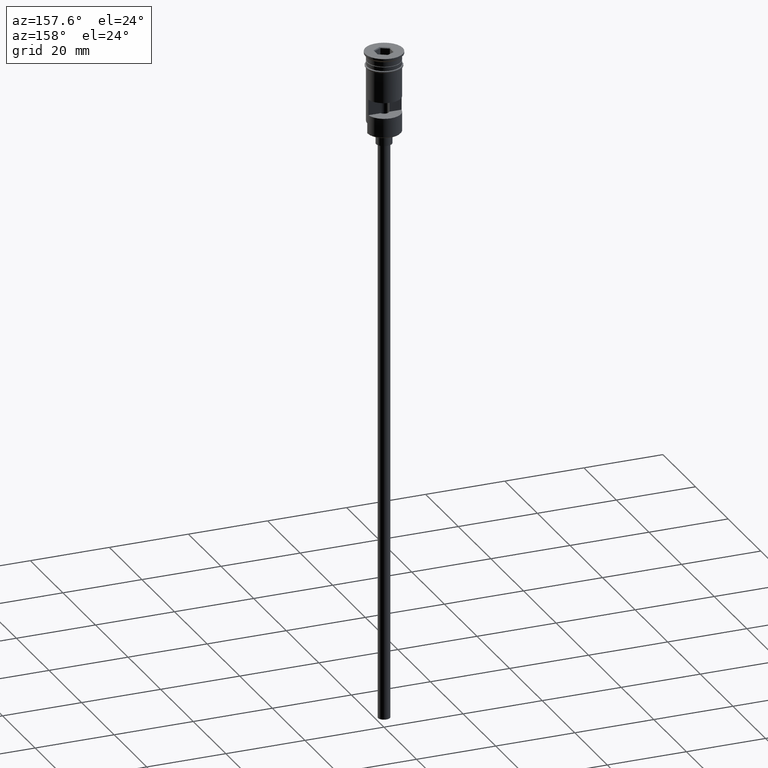
[diagram: clean part render]
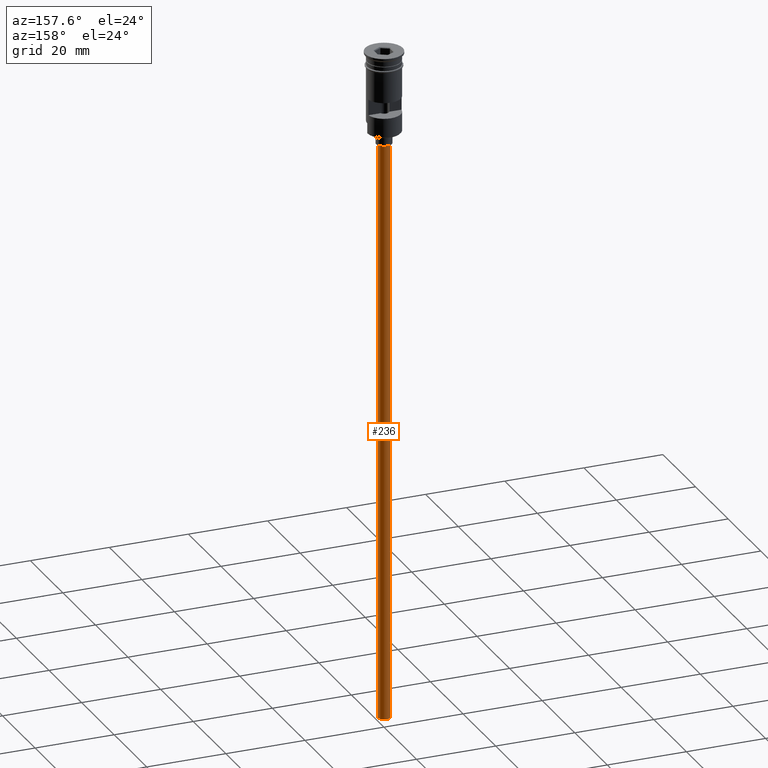
[diagram: same view with one face highlighted and labeled with its STEP entity id]
A machine part, auxiliary view. The second image highlights one B-rep face of the part: STEP entity #236.
In plain terms, the highlighted cylindrical surface (edge-blend (fillet) strip) has radius 1.5 mm, axis along (-0, -0, 1).
Its self-contained STEP definition (entity closure, byte-faithful):
#13 = DIRECTION ( 'NONE',  ( -0.000000000000000000, -0.000000000000000000, 1.000000000000000000 ) ) ;
#41 = CARTESIAN_POINT ( 'NONE',  ( 1.500000000000000222, 0.000000000000000000, -170.4999999999999716 ) ) ;
#55 = AXIS2_PLACEMENT_3D ( 'NONE', #180, #560, #332 ) ;
#59 = FACE_OUTER_BOUND ( 'NONE', #687, .T. ) ;
#112 = AXIS2_PLACEMENT_3D ( 'NONE', #740, #126, #613 ) ;
#126 = DIRECTION ( 'NONE',  ( 0.000000000000000000, 0.000000000000000000, -1.000000000000000000 ) ) ;
#146 = EDGE_CURVE ( 'NONE', #534, #1205, #1332, .T. ) ;
#180 = CARTESIAN_POINT ( 'NONE',  ( 0.000000000000000000, 0.000000000000000000, -170.4999999999999716 ) ) ;
#201 = DIRECTION ( 'NONE',  ( 0.000000000000000000, 0.000000000000000000, -1.000000000000000000 ) ) ;
#208 = CARTESIAN_POINT ( 'NONE',  ( 1.500000000000000222, 0.000000000000000000, -23.49999999999999645 ) ) ;
#215 = AXIS2_PLACEMENT_3D ( 'NONE', #824, #201, #1589 ) ;
#236 = ADVANCED_FACE ( 'NONE', ( #59 ), #1068, .T. ) ;
#240 = CARTESIAN_POINT ( 'NONE',  ( -1.500000000000000222, 1.836970198721030181E-16, -170.4999999999999716 ) ) ;
#305 = EDGE_CURVE ( 'NONE', #1009, #1557, #812, .T. ) ;
#332 = DIRECTION ( 'NONE',  ( 1.000000000000000000, 0.000000000000000000, 0.000000000000000000 ) ) ;
#534 = VERTEX_POINT ( 'NONE', #654 ) ;
#560 = DIRECTION ( 'NONE',  ( -0.000000000000000000, -0.000000000000000000, 1.000000000000000000 ) ) ;
#600 = LINE ( 'NONE', #240, #756 ) ;
#613 = DIRECTION ( 'NONE',  ( -1.000000000000000000, 0.000000000000000000, 0.000000000000000000 ) ) ;
#614 = ORIENTED_EDGE ( 'NONE', *, *, #770, .F. ) ;
#618 = CARTESIAN_POINT ( 'NONE',  ( -1.500000000000000222, 1.836970198721030181E-16, -170.4999999999999716 ) ) ;
#654 = CARTESIAN_POINT ( 'NONE',  ( -1.500000000000000222, 1.836970198721030181E-16, -23.49999999999999645 ) ) ;
#674 = LINE ( 'NONE', #1039, #844 ) ;
#687 = EDGE_LOOP ( 'NONE', ( #1021, #1474, #1450, #614 ) ) ;
#740 = CARTESIAN_POINT ( 'NONE',  ( 0.000000000000000000, 0.000000000000000000, -170.4999999999999716 ) ) ;
#756 = VECTOR ( 'NONE', #13, 1000.000000000000000 ) ;
#770 = EDGE_CURVE ( 'NONE', #1557, #1205, #674, .T. ) ;
#812 = CIRCLE ( 'NONE', #112, 1.500000000000000222 ) ;
#824 = CARTESIAN_POINT ( 'NONE',  ( 0.000000000000000000, 0.000000000000000000, -23.49999999999999645 ) ) ;
#844 = VECTOR ( 'NONE', #1433, 1000.000000000000000 ) ;
#946 = EDGE_CURVE ( 'NONE', #1009, #534, #600, .T. ) ;
#1009 = VERTEX_POINT ( 'NONE', #618 ) ;
#1021 = ORIENTED_EDGE ( 'NONE', *, *, #305, .F. ) ;
#1039 = CARTESIAN_POINT ( 'NONE',  ( 1.500000000000000222, 0.000000000000000000, -170.4999999999999716 ) ) ;
#1068 = CYLINDRICAL_SURFACE ( 'NONE', #55, 1.500000000000000222 ) ;
#1205 = VERTEX_POINT ( 'NONE', #208 ) ;
#1332 = CIRCLE ( 'NONE', #215, 1.500000000000000222 ) ;
#1433 = DIRECTION ( 'NONE',  ( -0.000000000000000000, -0.000000000000000000, 1.000000000000000000 ) ) ;
#1450 = ORIENTED_EDGE ( 'NONE', *, *, #146, .T. ) ;
#1474 = ORIENTED_EDGE ( 'NONE', *, *, #946, .T. ) ;
#1557 = VERTEX_POINT ( 'NONE', #41 ) ;
#1589 = DIRECTION ( 'NONE',  ( -1.000000000000000000, 0.000000000000000000, 0.000000000000000000 ) ) ;